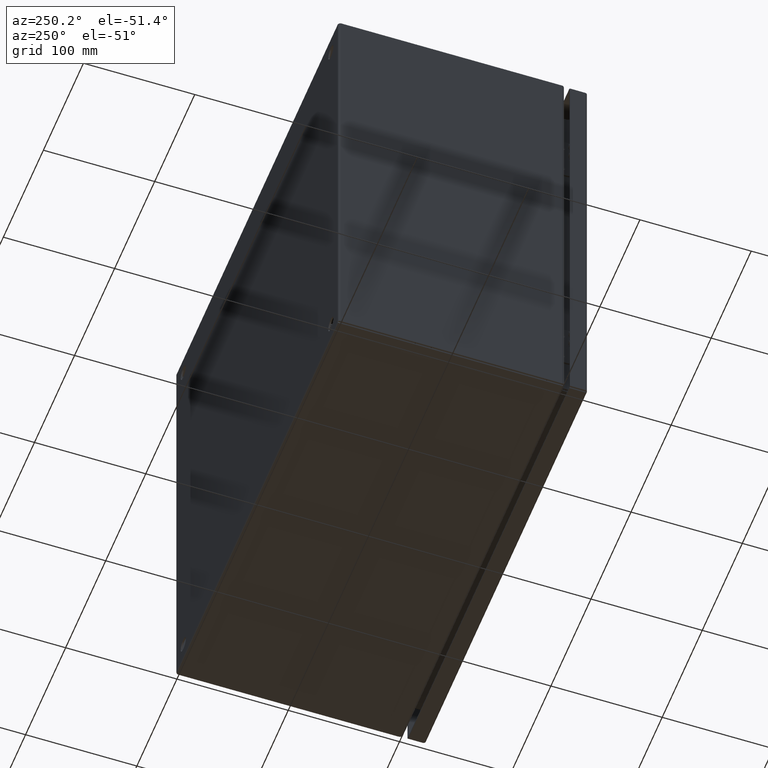
[diagram: clean part render]
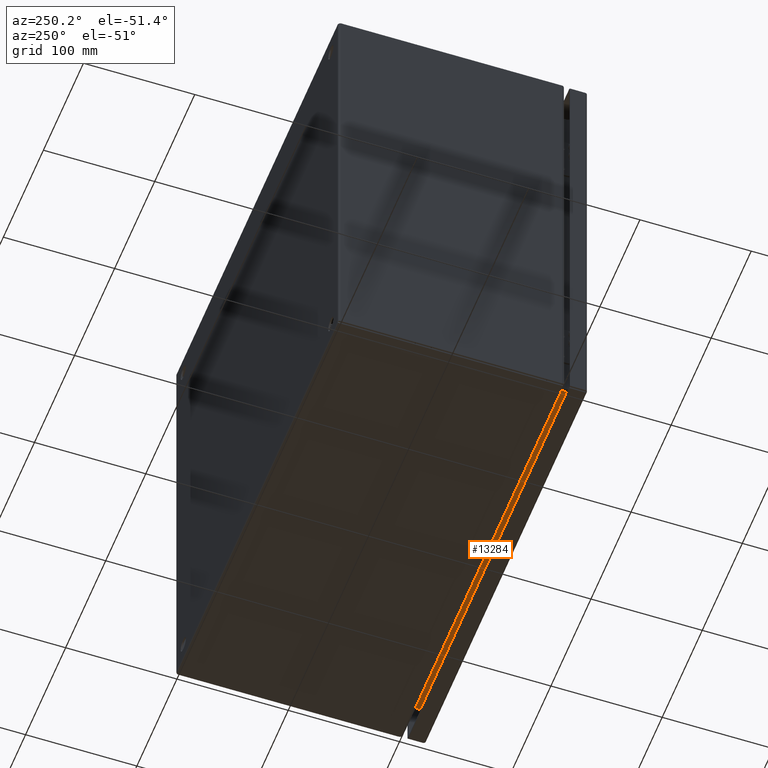
[diagram: same view with one face highlighted and labeled with its STEP entity id]
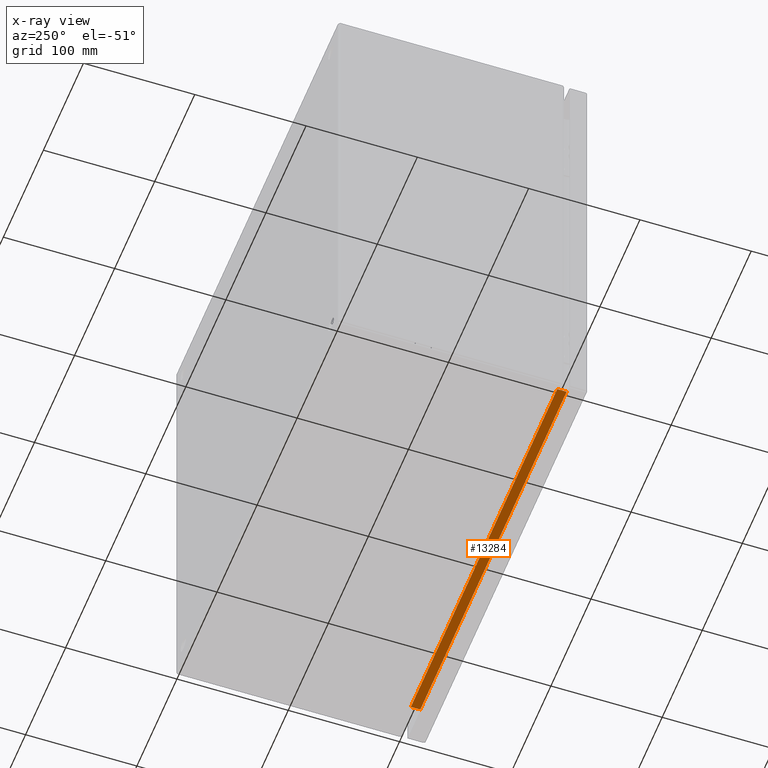
[diagram: x-ray of the same camera — body ghosted, the highlighted face saturated]
A machine part, auxiliary view. The second image highlights one B-rep face of the part: STEP entity #13284.
The next image is the same camera in x-ray: the body ghosted, the highlighted face saturated — about 0% of this face is hidden behind the body in this view.
In plain terms, the highlighted planar face has unit normal (0, -0, 1).
Its self-contained STEP definition (entity closure, byte-faithful):
#870 = CARTESIAN_POINT ( 'NONE',  ( 7.192227439546493351, -8.363201537686062892, -7.250999999999991452 ) ) ;
#1098 = VECTOR ( 'NONE', #17336, 39.37007874015748143 ) ;
#1104 = PLANE ( 'NONE',  #16672 ) ;
#1137 = DIRECTION ( 'NONE',  ( -0.0000000000000000000, 1.000000000000000000, 4.749095377264899969E-16 ) ) ;
#1653 = CARTESIAN_POINT ( 'NONE',  ( 7.191526118003937817, -8.028999999999999915, -7.251000000000005663 ) ) ;
#1858 = VECTOR ( 'NONE', #1137, 39.37007874015748143 ) ;
#2133 = CARTESIAN_POINT ( 'NONE',  ( -55.44149999999999778, -8.363201537686062892, -7.250999999999999446 ) ) ;
#2147 = EDGE_CURVE ( 'NONE', #11301, #3011, #18272, .T. ) ;
#2233 = DIRECTION ( 'NONE',  ( 0.0000000000000000000, -1.000000000000000000, -4.749095377264899969E-16 ) ) ;
#3011 = VERTEX_POINT ( 'NONE', #1653 ) ;
#3589 = EDGE_CURVE ( 'NONE', #15332, #9279, #20817, .T. ) ;
#4012 = LINE ( 'NONE', #10775, #17746 ) ;
#4439 = DIRECTION ( 'NONE',  ( 9.854884855800310504E-18, -4.749095377264899969E-16, 1.000000000000000000 ) ) ;
#4533 = DIRECTION ( 'NONE',  ( 0.0000000000000000000, -1.000000000000000000, -4.749095377264899969E-16 ) ) ;
#4610 = DIRECTION ( 'NONE',  ( 1.000000000000000000, 7.703719777548929728E-34, -6.219044387945329708E-16 ) ) ;
#4764 = EDGE_CURVE ( 'NONE', #9951, #9279, #16501, .T. ) ;
#4992 = LINE ( 'NONE', #15435, #17528 ) ;
#5058 = VERTEX_POINT ( 'NONE', #11592 ) ;
#6114 = CARTESIAN_POINT ( 'NONE',  ( 7.191526118003939594, -8.360083874847795471, -7.250999999999994117 ) ) ;
#7043 = ORIENTED_EDGE ( 'NONE', *, *, #17894, .F. ) ;
#7372 = ORIENTED_EDGE ( 'NONE', *, *, #2147, .T. ) ;
#9100 = CARTESIAN_POINT ( 'NONE',  ( 7.191526118003935153, -8.360083874847758167, -7.250999999999982570 ) ) ;
#9279 = VERTEX_POINT ( 'NONE', #870 ) ;
#9704 = CARTESIAN_POINT ( 'NONE',  ( -7.258378418592204007, -8.028999999999999915, -7.251000000000001222 ) ) ;
#9768 = ORIENTED_EDGE ( 'NONE', *, *, #3589, .F. ) ;
#9951 = VERTEX_POINT ( 'NONE', #6114 ) ;
#10730 = ORIENTED_EDGE ( 'NONE', *, *, #11877, .T. ) ;
#10775 = CARTESIAN_POINT ( 'NONE',  ( -7.191526118003936041, -7.942999999999999616, -7.250999999999999446 ) ) ;
#11207 = CARTESIAN_POINT ( 'NONE',  ( -55.44149999999999778, -7.942999999999999616, -7.250999999999999446 ) ) ;
#11301 = VERTEX_POINT ( 'NONE', #20042 ) ;
#11592 = CARTESIAN_POINT ( 'NONE',  ( -7.191526118003931600, -8.360083874847797247, -7.250999999999994117 ) ) ;
#11769 = DIRECTION ( 'NONE',  ( 0.2194667434999009181, 0.9756199816001867031, 0.0000000000000000000 ) ) ;
#11877 = EDGE_CURVE ( 'NONE', #15332, #5058, #4992, .T. ) ;
#13164 = VECTOR ( 'NONE', #4610, 39.37007874015748143 ) ;
#13198 = EDGE_CURVE ( 'NONE', #11301, #5058, #4012, .T. ) ;
#13284 = ADVANCED_FACE ( 'NONE', ( #21623 ), #1104, .F. ) ;
#14543 = VECTOR ( 'NONE', #21510, 39.37007874015748854 ) ;
#14677 = LINE ( 'NONE', #19908, #1858 ) ;
#15264 = ORIENTED_EDGE ( 'NONE', *, *, #13198, .F. ) ;
#15332 = VERTEX_POINT ( 'NONE', #17992 ) ;
#15435 = CARTESIAN_POINT ( 'NONE',  ( -7.261260944850508992, -8.670083874847756888, -7.250999999999982570 ) ) ;
#16501 = LINE ( 'NONE', #9100, #14543 ) ;
#16672 = AXIS2_PLACEMENT_3D ( 'NONE', #11207, #4439, #4533 ) ;
#17336 = DIRECTION ( 'NONE',  ( 1.000000000000000000, 4.680178811215912565E-33, -9.854884855800310504E-18 ) ) ;
#17528 = VECTOR ( 'NONE', #11769, 39.37007874015748854 ) ;
#17746 = VECTOR ( 'NONE', #2233, 39.37007874015748143 ) ;
#17894 = EDGE_CURVE ( 'NONE', #9951, #3011, #14677, .T. ) ;
#17992 = CARTESIAN_POINT ( 'NONE',  ( -7.192227439546487133, -8.363201537686064668, -7.250999999999987011 ) ) ;
#18121 = ORIENTED_EDGE ( 'NONE', *, *, #4764, .T. ) ;
#18272 = LINE ( 'NONE', #9704, #13164 ) ;
#19908 = CARTESIAN_POINT ( 'NONE',  ( 7.191526118003936041, -7.942999999999999616, -7.251000000000001222 ) ) ;
#20042 = CARTESIAN_POINT ( 'NONE',  ( -7.191526118003936041, -8.028999999999999915, -7.250999999999999446 ) ) ;
#20817 = LINE ( 'NONE', #2133, #1098 ) ;
#20829 = EDGE_LOOP ( 'NONE', ( #10730, #15264, #7372, #7043, #18121, #9768 ) ) ;
#21510 = DIRECTION ( 'NONE',  ( 0.2194667434999009181, -0.9756199816001867031, 0.0000000000000000000 ) ) ;
#21623 = FACE_OUTER_BOUND ( 'NONE', #20829, .T. ) ;